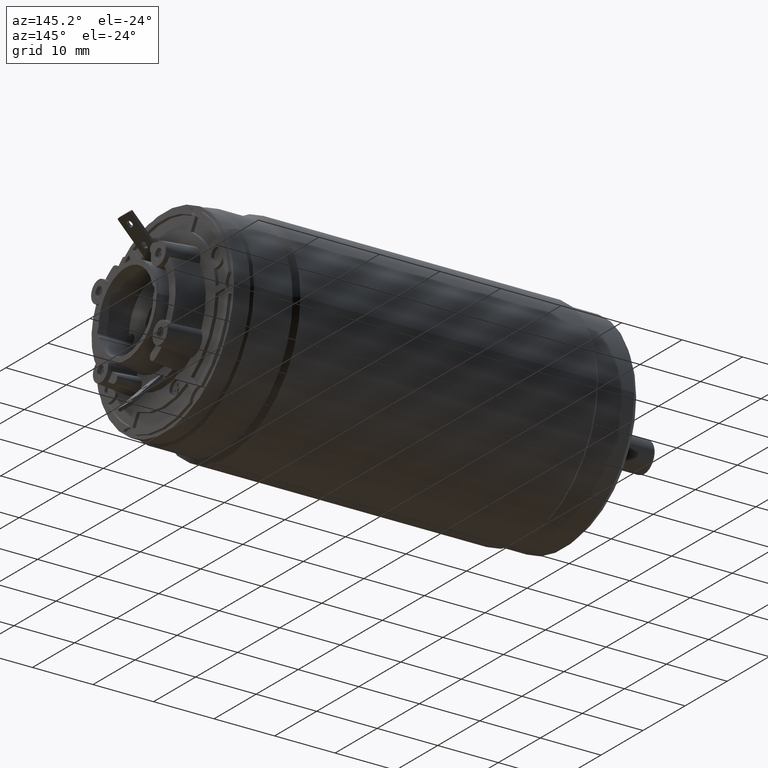
[diagram: clean part render]
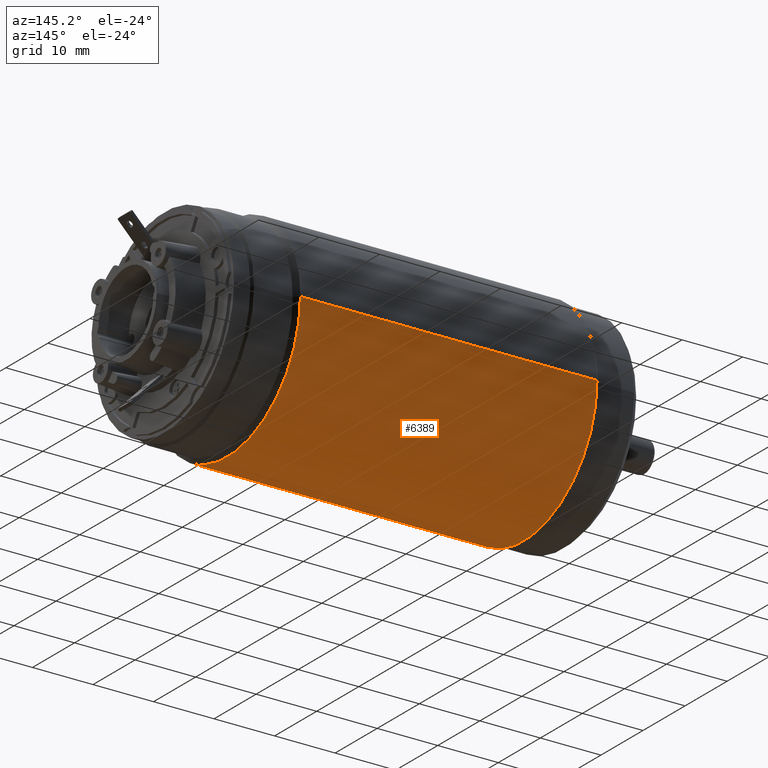
[diagram: same view with one face highlighted and labeled with its STEP entity id]
A machine part, auxiliary view. The second image highlights one B-rep face of the part: STEP entity #6389.
In plain terms, the highlighted cylindrical surface (partial cylindrical patch) has radius 17.5 mm, axis along (-1, 0, 0).
Its self-contained STEP definition (entity closure, byte-faithful):
#2179=DIRECTION('',(-1.E0,0.E0,0.E0));
#2180=VECTOR('',#2179,4.9E1);
#2181=CARTESIAN_POINT('',(-3.46E0,1.75E1,0.E0));
#2182=LINE('',#2181,#2180);
#2188=DIRECTION('',(-1.E0,0.E0,0.E0));
#2189=VECTOR('',#2188,4.9E1);
#2190=CARTESIAN_POINT('',(-3.46E0,-1.75E1,0.E0));
#2191=LINE('',#2190,#2189);
#2192=CARTESIAN_POINT('',(-3.46E0,0.E0,0.E0));
#2193=DIRECTION('',(-1.E0,0.E0,0.E0));
#2194=DIRECTION('',(0.E0,1.E0,0.E0));
#2195=AXIS2_PLACEMENT_3D('',#2192,#2193,#2194);
#2197=CARTESIAN_POINT('',(-5.246E1,0.E0,0.E0));
#2198=DIRECTION('',(-1.E0,0.E0,0.E0));
#2199=DIRECTION('',(0.E0,1.E0,0.E0));
#2200=AXIS2_PLACEMENT_3D('',#2197,#2198,#2199);
#3384=CARTESIAN_POINT('',(-3.46E0,1.75E1,0.E0));
#3385=VERTEX_POINT('',#3384);
#3386=CARTESIAN_POINT('',(-5.246E1,1.75E1,0.E0));
#3387=VERTEX_POINT('',#3386);
#3402=CARTESIAN_POINT('',(-3.46E0,-1.75E1,0.E0));
#3403=VERTEX_POINT('',#3402);
#3404=CARTESIAN_POINT('',(-5.246E1,-1.75E1,0.E0));
#3405=VERTEX_POINT('',#3404);
#6377=CARTESIAN_POINT('',(1.0075E1,0.E0,0.E0));
#6378=DIRECTION('',(-1.E0,0.E0,0.E0));
#6379=DIRECTION('',(0.E0,1.E0,0.E0));
#6380=AXIS2_PLACEMENT_3D('',#6377,#6378,#6379);
#6381=CYLINDRICAL_SURFACE('',#6380,1.75E1);
#6382=ORIENTED_EDGE('',*,*,#6367,.T.);
#6384=ORIENTED_EDGE('',*,*,#6383,.T.);
#6385=ORIENTED_EDGE('',*,*,#6370,.F.);
#6386=ORIENTED_EDGE('',*,*,#6341,.F.);
#6387=EDGE_LOOP('',(#6382,#6384,#6385,#6386));
#6388=FACE_OUTER_BOUND('',#6387,.F.);
#6389=ADVANCED_FACE('',(#6388),#6381,.T.);
#2196=CIRCLE('',#2195,1.75E1);
#2201=CIRCLE('',#2200,1.75E1);
#6341=EDGE_CURVE('',#3385,#3403,#2196,.T.);
#6367=EDGE_CURVE('',#3385,#3387,#2182,.T.);
#6370=EDGE_CURVE('',#3403,#3405,#2191,.T.);
#6383=EDGE_CURVE('',#3387,#3405,#2201,.T.);